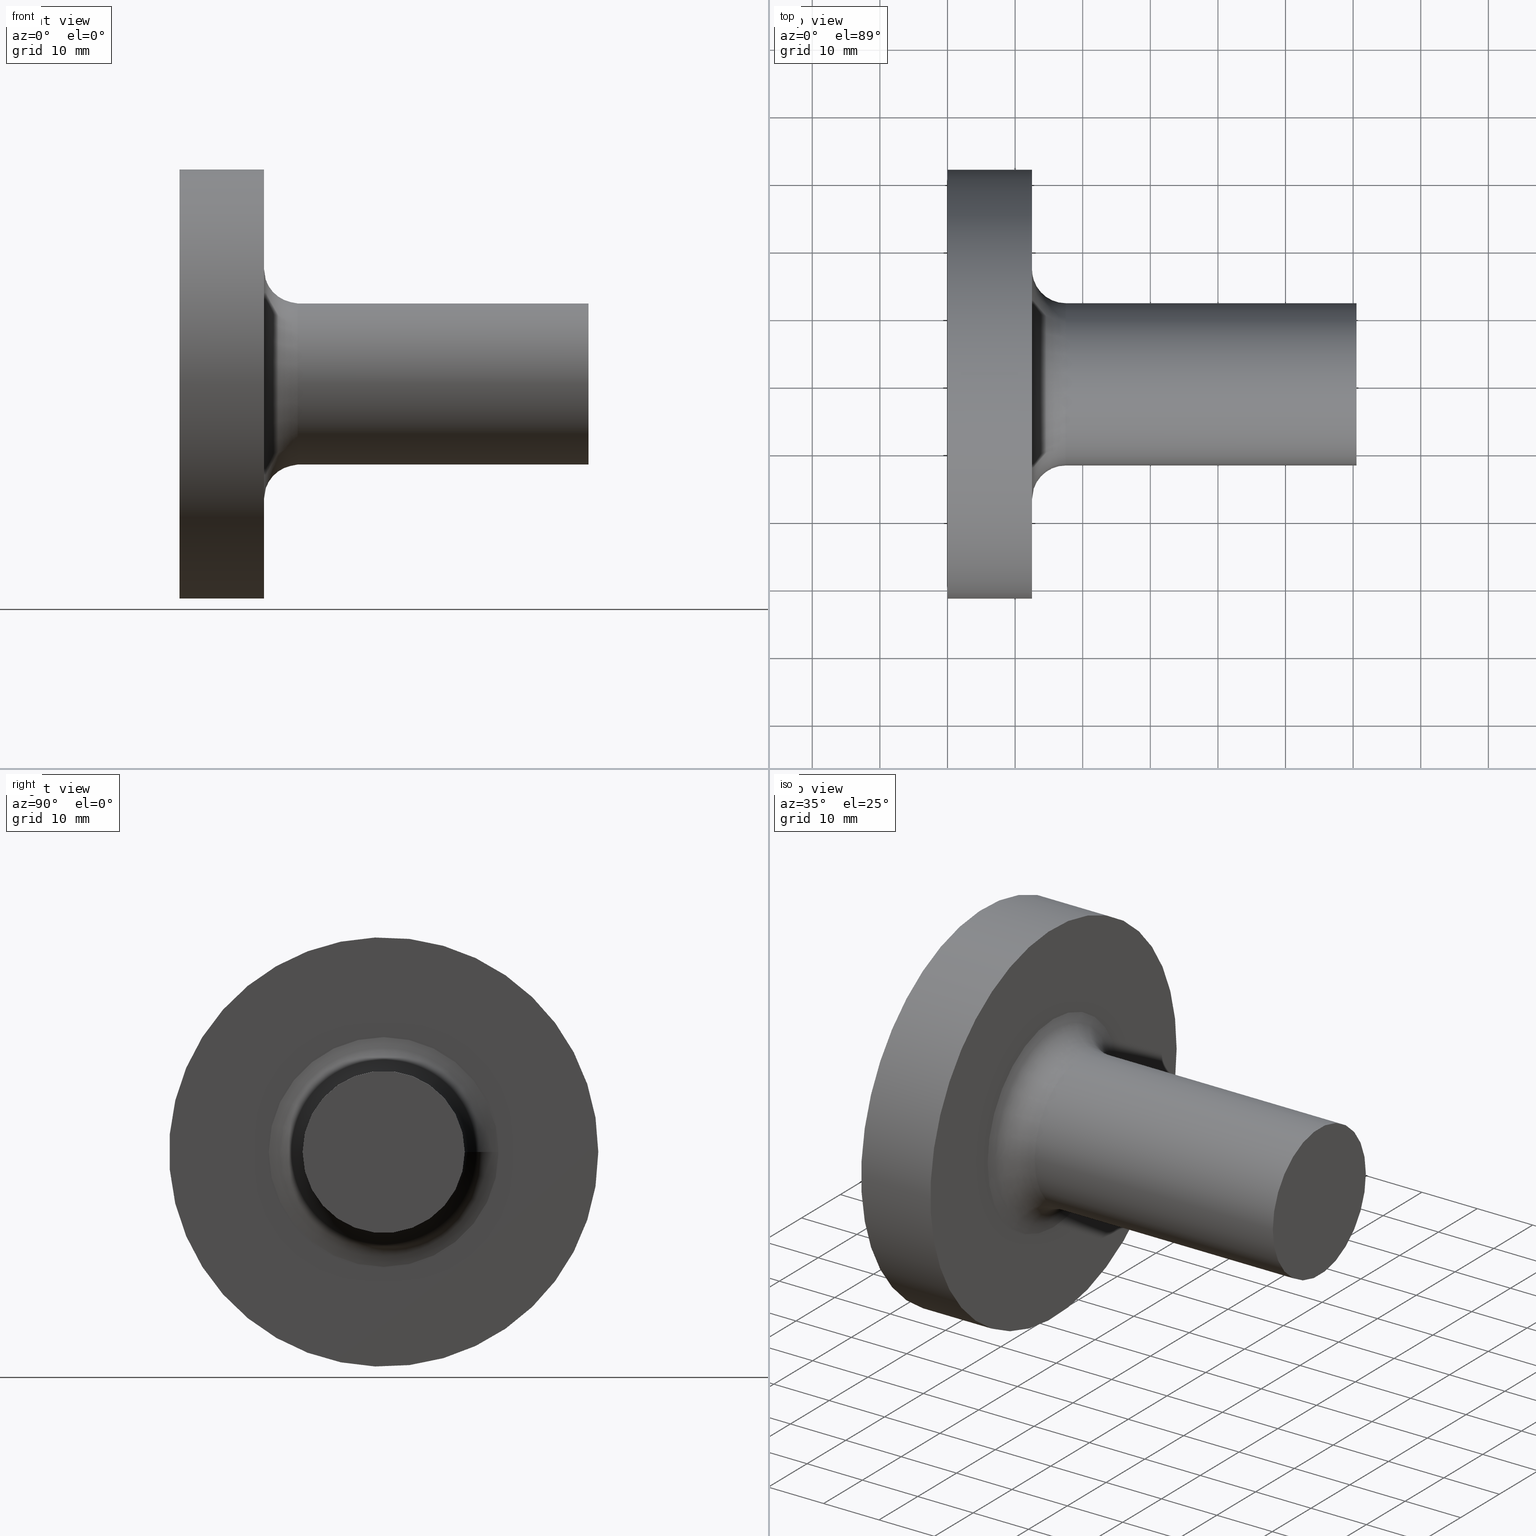
[diagram: canonical four-view strip — front | top / right | iso, engineering-drawing reading convention]
A machine part, canonical four-view strip (front | top / right | iso — engineering-drawing reading convention). The complete STEP part file that produces these views, byte-faithful:
ISO-10303-21;
HEADER;
FILE_DESCRIPTION (( 'STEP AP203' ),
    '1' );
FILE_NAME ('11.332.621.stp',
    '2018-08-01T16:33:58',
    ( '' ),
    ( '' ),
    'SwSTEP 2.0',
    'SolidWorks 2018',
    '' );
FILE_SCHEMA (( 'CONFIG_CONTROL_DESIGN' ));
ENDSEC;

DATA;
#1 = CALENDAR_DATE ( 2018, 1, 8 ) ;
#2 = APPROVAL ( #190, 'UNSPECIFIED' ) ;
#3 = DATE_AND_TIME ( #79, #53 ) ;
#4 = CARTESIAN_POINT ( 'NONE',  ( 60.50000000000000000, 12.00000000000000178, 0.0000000000000000000 ) ) ;
#5 = EDGE_CURVE ( 'NONE', #102, #102, #63, .T. ) ;
#6 = DESIGN_CONTEXT ( 'detailed design', #101, 'design' ) ;
#7 = PERSON_AND_ORGANIZATION_ROLE ( 'creator' ) ;
#8 = SECURITY_CLASSIFICATION ( '', '', #116 ) ;
#9 = APPROVAL_DATE_TIME ( #51, #2 ) ;
#10 = CARTESIAN_POINT ( 'NONE',  ( 12.49999999999999645, -8.855916935982917436E-16, 0.0000000000000000000 ) ) ;
#11 = DIRECTION ( 'NONE',  ( -7.084733548786341591E-17, -1.000000000000000000, 0.0000000000000000000 ) ) ;
#12 = TOROIDAL_SURFACE ( 'NONE', #135, 17.00000000000000000, 5.000000000000000000 ) ;
#13 = EDGE_LOOP ( 'NONE', ( #122 ) ) ;
#14 = PRODUCT_DEFINITION_FORMATION_WITH_SPECIFIED_SOURCE ( 'ANY', '', #107, .NOT_KNOWN. ) ;
#15 = CIRCLE ( 'NONE', #87, 12.00000000000000000 ) ;
#16 = CC_DESIGN_PERSON_AND_ORGANIZATION_ASSIGNMENT ( #121, #7, ( #14 ) ) ;
#17 = DIRECTION ( 'NONE',  ( 1.000000000000000000, -7.084733548786341591E-17, -0.0000000000000000000 ) ) ;
#18 = LOCAL_TIME ( 11, 33, 58.00000000000000000, #108 ) ;
#19 = ADVANCED_FACE ( 'NONE', ( #106, #85 ), #47, .T. ) ;
#20 = PRODUCT_RELATED_PRODUCT_CATEGORY ( 'detail', '', ( #107 ) ) ;
#21 = COORDINATED_UNIVERSAL_TIME_OFFSET ( 6, 0, .BEHIND. ) ;
#22 = COORDINATED_UNIVERSAL_TIME_OFFSET ( 6, 0, .BEHIND. ) ;
#23 = FACE_OUTER_BOUND ( 'NONE', #83, .T. ) ;
#24 = APPLICATION_PROTOCOL_DEFINITION ( 'international standard', 'config_control_design', 1994, #88 ) ;
#25 = DIRECTION ( 'NONE',  ( 0.0000000000000000000, 1.000000000000000000, 0.0000000000000000000 ) ) ;
#26 = AXIS2_PLACEMENT_3D ( 'NONE', #10, #162, #86 ) ;
#27 =( LENGTH_UNIT ( ) NAMED_UNIT ( * ) SI_UNIT ( .MILLI., .METRE. ) );
#28 = VERTEX_POINT ( 'NONE', #157 ) ;
#29 = DIRECTION ( 'NONE',  ( 1.000000000000000000, -7.084733548786341591E-17, -0.0000000000000000000 ) ) ;
#30 = APPROVAL_ROLE ( '' ) ;
#31 = PERSON ( 'UNSPECIFIED', 'UNSPECIFIED', 'UNSPECIFIED', ('UNSPECIFIED'), ('UNSPECIFIED'), ('UNSPECIFIED') ) ;
#32 = PLANE ( 'NONE',  #66 ) ;
#33 = CC_DESIGN_SECURITY_CLASSIFICATION ( #8, ( #14 ) ) ;
#34 = DIRECTION ( 'NONE',  ( 7.084733548786341591E-17, 1.000000000000000000, 0.0000000000000000000 ) ) ;
#35 = CARTESIAN_POINT ( 'NONE',  ( 17.50000000000000000, 0.0000000000000000000, 0.0000000000000000000 ) ) ;
#36 = CARTESIAN_POINT ( 'NONE',  ( 0.0000000000000000000, 7.703719777548943412E-31, 0.0000000000000000000 ) ) ;
#37 = ORIENTED_EDGE ( 'NONE', *, *, #5, .T. ) ;
#38 = ADVANCED_FACE ( 'NONE', ( #57 ), #32, .T. ) ;
#39 = APPROVAL ( #43, 'UNSPECIFIED' ) ;
#40 = CARTESIAN_POINT ( 'NONE',  ( 2.249402901739663612E-15, 31.75000000000000000, 0.0000000000000000000 ) ) ;
#41 = VERTEX_POINT ( 'NONE', #4 ) ;
#42 = ORIENTED_EDGE ( 'NONE', *, *, #70, .F. ) ;
#43 = APPROVAL_STATUS ( 'not_yet_approved' ) ;
#44 = DIRECTION ( 'NONE',  ( 0.0000000000000000000, 1.000000000000000000, 0.0000000000000000000 ) ) ;
#45 = DIRECTION ( 'NONE',  ( 1.000000000000000000, -7.084733548786341591E-17, -0.0000000000000000000 ) ) ;
#46 = PERSON_AND_ORGANIZATION_ROLE ( 'design_owner' ) ;
#47 = CYLINDRICAL_SURFACE ( 'NONE', #78, 31.75000000000000000 ) ;
#48 = EDGE_LOOP ( 'NONE', ( #42 ) ) ;
#49 = DIRECTION ( 'NONE',  ( -1.000000000000000000, 7.084733548786341591E-17, 0.0000000000000000000 ) ) ;
#50 = DIRECTION ( 'NONE',  ( 1.000000000000000000, -7.084733548786341591E-17, -0.0000000000000000000 ) ) ;
#51 = DATE_AND_TIME ( #64, #68 ) ;
#52 = PLANE ( 'NONE',  #171 ) ;
#53 = LOCAL_TIME ( 11, 33, 58.00000000000000000, #131 ) ;
#54 = EDGE_LOOP ( 'NONE', ( #181 ) ) ;
#55 = CC_DESIGN_PERSON_AND_ORGANIZATION_ASSIGNMENT ( #140, #113, ( #8 ) ) ;
#56 = CARTESIAN_POINT ( 'NONE',  ( 0.0000000000000000000, 0.0000000000000000000, 0.0000000000000000000 ) ) ;
#57 = FACE_OUTER_BOUND ( 'NONE', #172, .T. ) ;
#58 = COORDINATED_UNIVERSAL_TIME_OFFSET ( 6, 0, .BEHIND. ) ;
#59 = FACE_OUTER_BOUND ( 'NONE', #161, .T. ) ;
#60 = ORIENTED_EDGE ( 'NONE', *, *, #5, .F. ) ;
#61 = DIRECTION ( 'NONE',  ( 1.020425574104004122E-16, 1.000000000000000000, 0.0000000000000000000 ) ) ;
#62 = FACE_OUTER_BOUND ( 'NONE', #99, .T. ) ;
#63 = CIRCLE ( 'NONE', #26, 31.75000000000000711 ) ;
#64 = CALENDAR_DATE ( 2018, 1, 8 ) ;
#65 = CLOSED_SHELL ( 'NONE', ( #38, #97, #138, #158, #19, #169 ) ) ;
#66 = AXIS2_PLACEMENT_3D ( 'NONE', #128, #45, #34 ) ;
#67 = DIRECTION ( 'NONE',  ( 0.0000000000000000000, 0.0000000000000000000, 1.000000000000000000 ) ) ;
#68 = LOCAL_TIME ( 11, 33, 58.00000000000000000, #58 ) ;
#69 = ORIENTED_EDGE ( 'NONE', *, *, #174, .F. ) ;
#70 = EDGE_CURVE ( 'NONE', #170, #170, #163, .T. ) ;
#71 = APPROVAL_ROLE ( '' ) ;
#72 = CARTESIAN_POINT ( 'NONE',  ( 60.50000000000000000, -4.286263797015735707E-15, 0.0000000000000000000 ) ) ;
#73 = EDGE_CURVE ( 'NONE', #28, #28, #15, .T. ) ;
#74 = DATE_TIME_ROLE ( 'creation_date' ) ;
#75 = DATE_AND_TIME ( #1, #141 ) ;
#76 = FACE_BOUND ( 'NONE', #48, .T. ) ;
#77 = PLANE ( 'NONE',  #126 ) ;
#78 = AXIS2_PLACEMENT_3D ( 'NONE', #72, #29, #44 ) ;
#79 = CALENDAR_DATE ( 2018, 1, 8 ) ;
#80 = ORIENTED_EDGE ( 'NONE', *, *, #192, .T. ) ;
#81 = AXIS2_PLACEMENT_3D ( 'NONE', #152, #115, #61 ) ;
#82 = PERSON_AND_ORGANIZATION ( #31, #95 ) ;
#83 = EDGE_LOOP ( 'NONE', ( #93 ) ) ;
#84 = CALENDAR_DATE ( 2018, 1, 8 ) ;
#85 = FACE_OUTER_BOUND ( 'NONE', #114, .T. ) ;
#86 = DIRECTION ( 'NONE',  ( 5.463695987328525204E-17, 1.000000000000000000, 0.0000000000000000000 ) ) ;
#87 = AXIS2_PLACEMENT_3D ( 'NONE', #193, #50, #153 ) ;
#88 = APPLICATION_CONTEXT ( 'configuration controlled 3d designs of mechanical parts and assemblies' ) ;
#89 = PERSON_AND_ORGANIZATION ( #31, #95 ) ;
#90 = APPROVAL_STATUS ( 'not_yet_approved' ) ;
#91 = DIRECTION ( 'NONE',  ( 7.084733548786341591E-17, 1.000000000000000000, 0.0000000000000000000 ) ) ;
#92 = AXIS2_PLACEMENT_3D ( 'NONE', #130, #148, #25 ) ;
#93 = ORIENTED_EDGE ( 'NONE', *, *, #73, .T. ) ;
#94 = CC_DESIGN_PERSON_AND_ORGANIZATION_ASSIGNMENT ( #182, #146, ( #14 ) ) ;
#95 = ORGANIZATION ( 'UNSPECIFIED', 'UNSPECIFIED', '' ) ;
#96 = CARTESIAN_POINT ( 'NONE',  ( 12.49999999999999822, 31.75000000000000711, 0.0000000000000000000 ) ) ;
#97 = ADVANCED_FACE ( 'NONE', ( #23, #155 ), #180, .T. ) ;
#98 = MANIFOLD_SOLID_BREP ( 'Body', #65 ) ;
#99 = EDGE_LOOP ( 'NONE', ( #69 ) ) ;
#100 = APPROVAL_PERSON_ORGANIZATION ( #89, #145, #117 ) ;
#101 = APPLICATION_CONTEXT ( 'configuration controlled 3d designs of mechanical parts and assemblies' ) ;
#102 = VERTEX_POINT ( 'NONE', #96 ) ;
#103 =( NAMED_UNIT ( * ) PLANE_ANGLE_UNIT ( ) SI_UNIT ( $, .RADIAN. ) );
#104 = CARTESIAN_POINT ( 'NONE',  ( -1.124701450869831806E-15, 7.968210101346169908E-32, 0.0000000000000000000 ) ) ;
#105 = DATE_AND_TIME ( #84, #18 ) ;
#106 = FACE_OUTER_BOUND ( 'NONE', #151, .T. ) ;
#107 = PRODUCT ( '11.332.621', '11.332.621', '', ( #176 ) ) ;
#108 = COORDINATED_UNIVERSAL_TIME_OFFSET ( 6, 0, .BEHIND. ) ;
#109 = EDGE_LOOP ( 'NONE', ( #37 ) ) ;
#110 = CARTESIAN_POINT ( 'NONE',  ( 60.50000000000000000, -4.286263797015735707E-15, 0.0000000000000000000 ) ) ;
#111 = AXIS2_PLACEMENT_3D ( 'NONE', #110, #17, #139 ) ;
#112 = APPROVAL_PERSON_ORGANIZATION ( #133, #39, #30 ) ;
#113 = PERSON_AND_ORGANIZATION_ROLE ( 'classification_officer' ) ;
#114 = EDGE_LOOP ( 'NONE', ( #60 ) ) ;
#115 = DIRECTION ( 'NONE',  ( 1.000000000000000000, -7.084733548786341591E-17, -0.0000000000000000000 ) ) ;
#116 = SECURITY_CLASSIFICATION_LEVEL ( 'unclassified' ) ;
#117 = APPROVAL_ROLE ( '' ) ;
#118 = FACE_OUTER_BOUND ( 'NONE', #13, .T. ) ;
#119 = DIRECTION ( 'NONE',  ( 1.000000000000000000, -7.084733548786341591E-17, -0.0000000000000000000 ) ) ;
#120 = APPROVAL_DATE_TIME ( #75, #39 ) ;
#121 = PERSON_AND_ORGANIZATION ( #31, #95 ) ;
#122 = ORIENTED_EDGE ( 'NONE', *, *, #70, .T. ) ;
#123 = VERTEX_POINT ( 'NONE', #40 ) ;
#124 = CC_DESIGN_DATE_AND_TIME_ASSIGNMENT ( #3, #74, ( #194 ) ) ;
#125 = FACE_OUTER_BOUND ( 'NONE', #109, .T. ) ;
#126 = AXIS2_PLACEMENT_3D ( 'NONE', #179, #119, #91 ) ;
#127 = APPLICATION_PROTOCOL_DEFINITION ( 'international standard', 'config_control_design', 1994, #101 ) ;
#128 = CARTESIAN_POINT ( 'NONE',  ( 60.50000000000000000, 12.00000000000000178, 0.0000000000000000000 ) ) ;
#129 = DIRECTION ( 'NONE',  ( 1.000000000000000000, 0.0000000000000000000, 0.0000000000000000000 ) ) ;
#130 = CARTESIAN_POINT ( 'NONE',  ( 60.50000000000000000, -4.286263797015735707E-15, 0.0000000000000000000 ) ) ;
#131 = COORDINATED_UNIVERSAL_TIME_OFFSET ( 6, 0, .BEHIND. ) ;
#132 = DIRECTION ( 'NONE',  ( 7.084733548786341591E-17, 1.000000000000000000, 0.0000000000000000000 ) ) ;
#133 = PERSON_AND_ORGANIZATION ( #31, #95 ) ;
#134 = CALENDAR_DATE ( 2018, 1, 8 ) ;
#135 = AXIS2_PLACEMENT_3D ( 'NONE', #35, #166, #132 ) ;
#136 = DIRECTION ( 'NONE',  ( 1.000000000000000000, -7.084733548786341591E-17, -0.0000000000000000000 ) ) ;
#137 = CIRCLE ( 'NONE', #111, 12.00000000000000533 ) ;
#138 = ADVANCED_FACE ( 'NONE', ( #118, #59 ), #12, .F. ) ;
#139 = DIRECTION ( 'NONE',  ( 0.0000000000000000000, 1.000000000000000000, 0.0000000000000000000 ) ) ;
#140 = PERSON_AND_ORGANIZATION ( #31, #95 ) ;
#141 = LOCAL_TIME ( 11, 33, 58.00000000000000000, #22 ) ;
#142 = ORIENTED_EDGE ( 'NONE', *, *, #174, .T. ) ;
#143 = PRODUCT_DEFINITION_SHAPE ( 'NONE', 'NONE',  #194 ) ;
#144 =( NAMED_UNIT ( * ) SI_UNIT ( $, .STERADIAN. ) SOLID_ANGLE_UNIT ( ) );
#145 = APPROVAL ( #90, 'UNSPECIFIED' ) ;
#146 = PERSON_AND_ORGANIZATION_ROLE ( 'design_supplier' ) ;
#147 = AXIS2_PLACEMENT_3D ( 'NONE', #36, #136, #156 ) ;
#148 = DIRECTION ( 'NONE',  ( 1.000000000000000000, -7.084733548786341591E-17, -0.0000000000000000000 ) ) ;
#149 = CC_DESIGN_APPROVAL ( #145, ( #194 ) ) ;
#150 = PERSON_AND_ORGANIZATION ( #31, #95 ) ;
#151 = EDGE_LOOP ( 'NONE', ( #142 ) ) ;
#152 = CARTESIAN_POINT ( 'NONE',  ( 12.49999999999999645, -8.855916935982917436E-16, 0.0000000000000000000 ) ) ;
#153 = DIRECTION ( 'NONE',  ( 0.0000000000000000000, 1.000000000000000000, 0.0000000000000000000 ) ) ;
#154 = ORIENTED_EDGE ( 'NONE', *, *, #73, .F. ) ;
#155 = FACE_OUTER_BOUND ( 'NONE', #54, .T. ) ;
#156 = DIRECTION ( 'NONE',  ( 7.084733548786341591E-17, 1.000000000000000000, 0.0000000000000000000 ) ) ;
#157 = CARTESIAN_POINT ( 'NONE',  ( 17.50000000000000000, 11.99999999999999822, 0.0000000000000000000 ) ) ;
#158 = ADVANCED_FACE ( 'NONE', ( #125, #76 ), #77, .T. ) ;
#159 =( GEOMETRIC_REPRESENTATION_CONTEXT ( 3 ) GLOBAL_UNCERTAINTY_ASSIGNED_CONTEXT ( ( #183 ) ) GLOBAL_UNIT_ASSIGNED_CONTEXT ( ( #27, #103, #144 ) ) REPRESENTATION_CONTEXT ( 'NONE', 'WORKASPACE' ) );
#160 = APPROVAL_PERSON_ORGANIZATION ( #191, #2, #71 ) ;
#161 = EDGE_LOOP ( 'NONE', ( #154 ) ) ;
#162 = DIRECTION ( 'NONE',  ( 1.000000000000000000, -7.084733548786341591E-17, -0.0000000000000000000 ) ) ;
#163 = CIRCLE ( 'NONE', #81, 17.00000000000000000 ) ;
#164 = PERSON_AND_ORGANIZATION_ROLE ( 'creator' ) ;
#165 = SHAPE_DEFINITION_REPRESENTATION ( #143, #187 ) ;
#166 = DIRECTION ( 'NONE',  ( 1.000000000000000000, -7.084733548786341591E-17, -0.0000000000000000000 ) ) ;
#167 = AXIS2_PLACEMENT_3D ( 'NONE', #56, #67, #129 ) ;
#168 = CC_DESIGN_APPROVAL ( #39, ( #8 ) ) ;
#169 = ADVANCED_FACE ( 'NONE', ( #62 ), #52, .T. ) ;
#170 = VERTEX_POINT ( 'NONE', #185 ) ;
#171 = AXIS2_PLACEMENT_3D ( 'NONE', #104, #49, #11 ) ;
#172 = EDGE_LOOP ( 'NONE', ( #80 ) ) ;
#173 = CIRCLE ( 'NONE', #147, 31.75000000000000000 ) ;
#174 = EDGE_CURVE ( 'NONE', #123, #123, #173, .T. ) ;
#175 = APPROVAL_DATE_TIME ( #105, #145 ) ;
#176 = MECHANICAL_CONTEXT ( 'NONE', #88, 'mechanical' ) ;
#177 = CC_DESIGN_APPROVAL ( #2, ( #14 ) ) ;
#178 = LOCAL_TIME ( 11, 33, 58.00000000000000000, #21 ) ;
#179 = CARTESIAN_POINT ( 'NONE',  ( 12.50000000000000000, 31.75000000000000000, 0.0000000000000000000 ) ) ;
#180 = CYLINDRICAL_SURFACE ( 'NONE', #92, 12.00000000000000355 ) ;
#181 = ORIENTED_EDGE ( 'NONE', *, *, #192, .F. ) ;
#182 = PERSON_AND_ORGANIZATION ( #31, #95 ) ;
#183 = UNCERTAINTY_MEASURE_WITH_UNIT (LENGTH_MEASURE( 1.000000000000000082E-05 ), #27, 'distance_accuracy_value', 'NONE');
#184 = CC_DESIGN_PERSON_AND_ORGANIZATION_ASSIGNMENT ( #82, #46, ( #107 ) ) ;
#185 = CARTESIAN_POINT ( 'NONE',  ( 12.49999999999999822, 17.00000000000000000, 0.0000000000000000000 ) ) ;
#186 = CC_DESIGN_DATE_AND_TIME_ASSIGNMENT ( #195, #189, ( #8 ) ) ;
#187 = ADVANCED_BREP_SHAPE_REPRESENTATION ( '11.332.621', ( #98, #167 ), #159 ) ;
#188 = CC_DESIGN_PERSON_AND_ORGANIZATION_ASSIGNMENT ( #150, #164, ( #194 ) ) ;
#189 = DATE_TIME_ROLE ( 'classification_date' ) ;
#190 = APPROVAL_STATUS ( 'not_yet_approved' ) ;
#191 = PERSON_AND_ORGANIZATION ( #31, #95 ) ;
#192 = EDGE_CURVE ( 'NONE', #41, #41, #137, .T. ) ;
#193 = CARTESIAN_POINT ( 'NONE',  ( 17.50000000000000000, -1.239828371037609427E-15, 0.0000000000000000000 ) ) ;
#194 = PRODUCT_DEFINITION ( 'UNKNOWN', '', #14, #6 ) ;
#195 = DATE_AND_TIME ( #134, #178 ) ;
ENDSEC;
END-ISO-10303-21;
